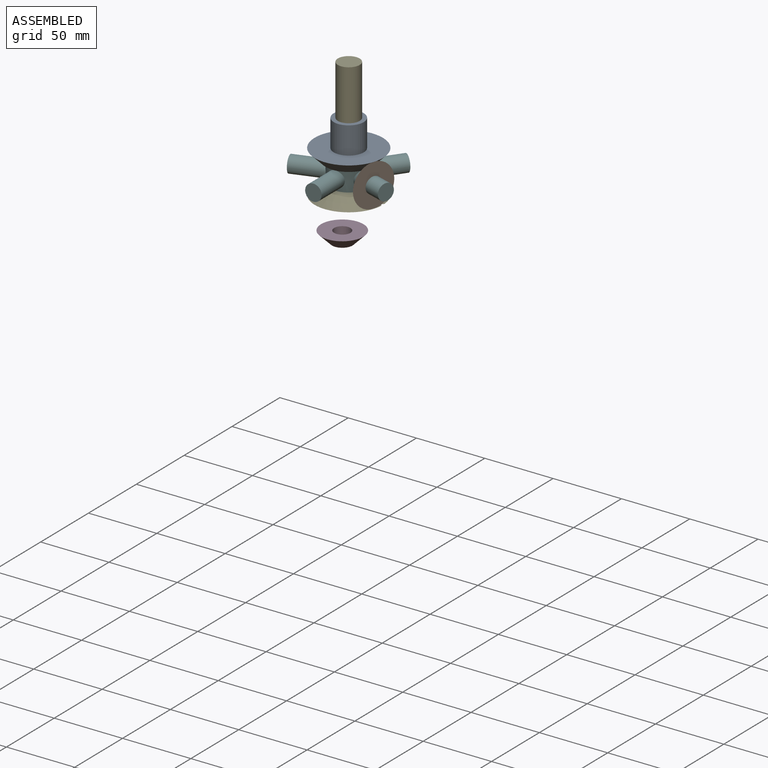
[diagram: assembled view]
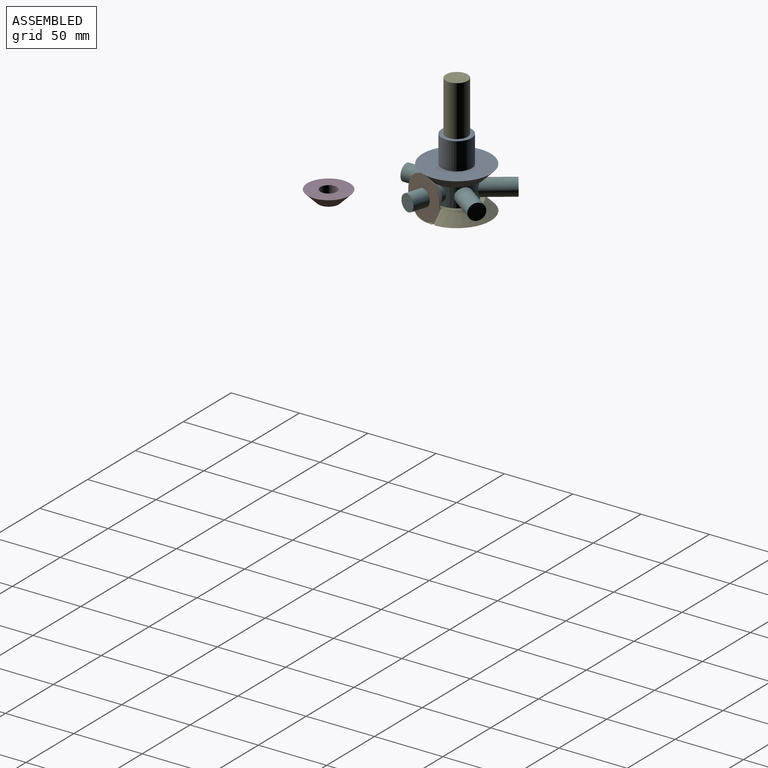
[diagram: assembled view, second angle]
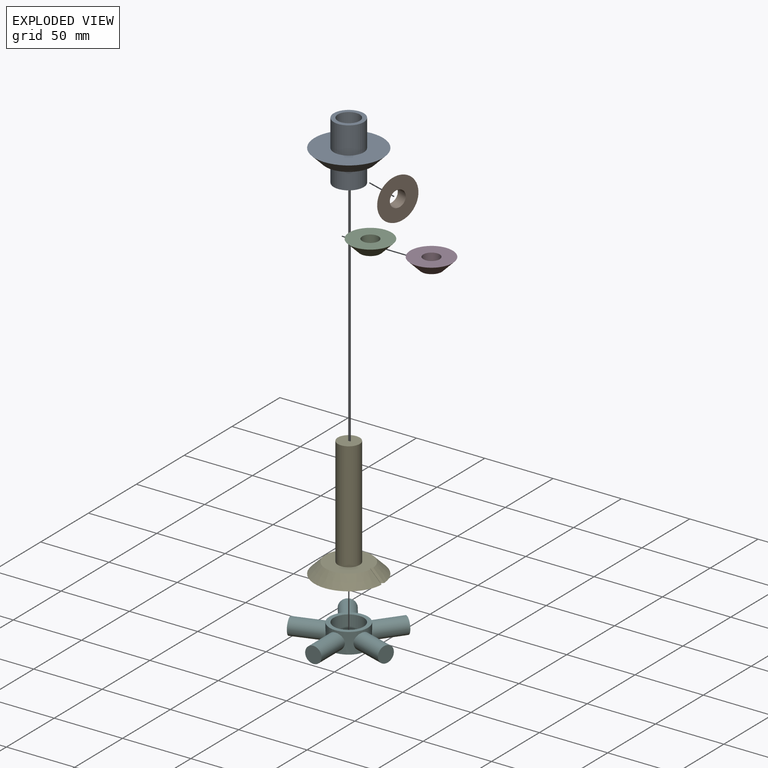
[diagram: exploded view]
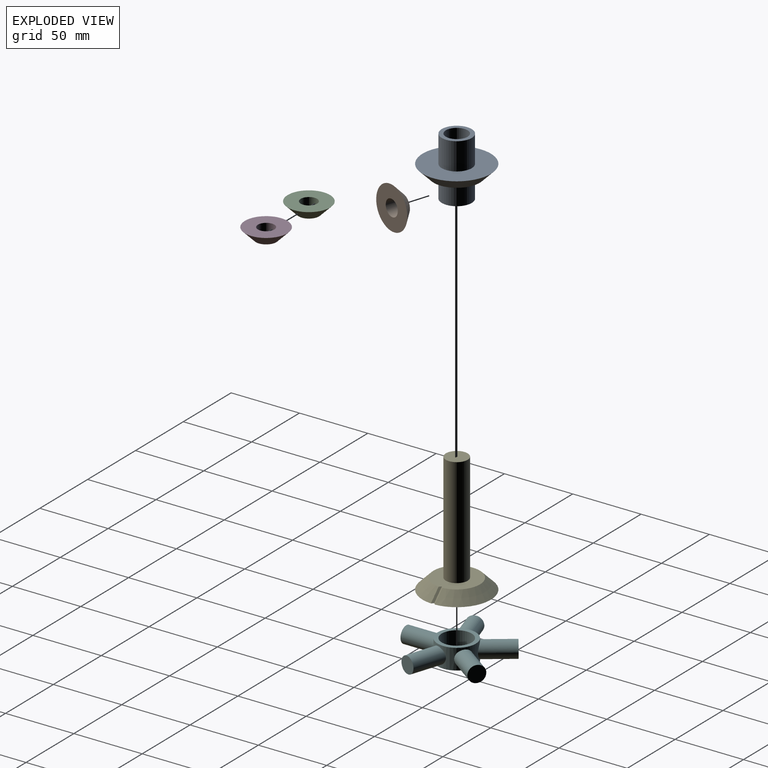
[diagram: exploded view, second angle]
ASSEMBLY  parts=6 mates=5
PART A: 8 faces, bbox 50x50x43 mm
  f0: cylinder r=8mm len=43mm, axis (0,0,-1), area 2161.4mm2, adj f1,f7
  f1: plane 22x22mm, normal (0,0,-1), area 179.1mm2, adj f0,f2
  f2: cylinder r=11mm len=22mm, axis (0,0,-1), area 1036.7mm2, adj f1,f3
  f3: plane 34x34mm, normal (0,0,-1), area 527.8mm2, adj f2,f4
  f4: cone r=25mm half-angle=45deg, axis (0,0,1), area 1492.8mm2, adj f3,f5
  f5: plane 50x50mm, normal (0,0,1), area 1583.4mm2, adj f4,f6
  f6: cylinder r=11mm len=22mm, axis (0,0,-1), area 1382.3mm2, adj f5,f7
  f7: plane 22x22mm, normal (0,0,1), area 179.1mm2, adj f0,f6
PART B: 4 faces, bbox 31x31x8 mm
  f0: cylinder r=6mm len=12mm, axis (0,0,-1), area 301.6mm2, adj f1,f3
  f1: plane 15x15mm, normal (0,0,-1), area 63.6mm2, adj f0,f2
  f2: cone r=15.5mm half-angle=45deg, axis (0,0,1), area 817.5mm2, adj f1,f3
  f3: plane 31x31mm, normal (0,0,1), area 641.7mm2, adj f0,f2
PART C: same geometry as B
PART D: same geometry as B
PART E: 9 faces, bbox 50.1x50.1x88.1 mm
  f0: plane 50x49.96mm, normal (0,0,-1), area 1961.4mm2, adj f1,f5,f6,f7,f8
  f1: cone r=25mm half-angle=45deg, axis (0,0,-1), area 1460mm2, adj f0,f2,f7,f8
  f2: plane 34x33.94mm, normal (0,0,1), area 704.7mm2, adj f1,f3,f5,f6
  f3: cylinder r=8mm len=80mm, axis (0,0,1), area 4021.2mm2, adj f2,f4
  f4: plane 16x16mm, normal (0,0,1), area 201.1mm2, adj f3
  f5: plane 9.41x8mm, normal (0.58,0.58,0.58), area 19.6mm2, adj f0,f2,f6,f7
  f6: plane 9.41x8mm, normal (0.58,-0.58,0.58), area 19.6mm2, adj f0,f2,f5,f8
  f7: plane 8.13x8.11mm, normal (0,1,0), area 0.1mm2, adj f0,f1,f5
  f8: plane 8.13x8.11mm, normal (0,-1,0), area 0.1mm2, adj f0,f1,f6
PART F: 14 faces, bbox 74.1x70.5x15 mm
  f0: cylinder r=6mm len=26.87mm, axis (0.95,0.31,0), area 892.3mm2, adj f1,f8
  f1: plane 12x11.41mm, normal (-0.95,-0.31,0), area 113.1mm2, adj f0
  f2: cylinder r=6mm len=26.75mm, axis (0.59,-0.81,0), area 892.3mm2, adj f3,f8
  f3: plane 12x9.71mm, normal (-0.59,0.81,0), area 113.1mm2, adj f2
  f4: cylinder r=6mm len=26.75mm, axis (-0.59,-0.81,0), area 892.3mm2, adj f5,f8
  f5: plane 12x9.71mm, normal (0.59,0.81,0), area 113.1mm2, adj f4
  f6: cylinder r=6mm len=26.87mm, axis (-0.95,0.31,0), area 892.2mm2, adj f7,f8
  f7: plane 12x11.41mm, normal (0.95,-0.31,0), area 113.1mm2, adj f6
  f8: cylinder r=14mm len=28mm, axis (0,0,-1), area 740.6mm2, adj f0,f2,f4,f6,f10,f11,f12
  f9: cylinder r=11mm len=22mm, axis (0,0,-1), area 1036.7mm2, adj f10,f11
  f10: plane 28x28mm, normal (0,0,1), area 235.6mm2, adj f8,f9
  f11: plane 28x28mm, normal (0,0,-1), area 235.6mm2, adj f8,f9
  f12: cylinder r=6mm len=24.35mm, axis (0,1,0), area 892.3mm2, adj f8,f13
  f13: plane 12x12mm, normal (0,-1,0), area 113.1mm2, adj f12
PLACE A t=(-11.83,81.92,9.17)mm
PLACE B rot(axis=(0.31,0.95,0),90deg) t=(4.1,76.75,1.67)mm
PLACE C t=(29.06,16.76,-9.59)mm
PLACE D t=(29.06,16.76,-9.59)mm
PLACE E t=(-11.83,81.92,-13.83)mm
PLACE F t=(-11.83,81.92,-5.83)mm
MATE slider F.f9 <-> A.f0  axis (0,0,-1) through (-11.83,81.92,9.17)mm
MATE planar E.f2 <-> A.f0  axis (0,0,1) through (-11.87,81.92,-5.83)mm
MATE planar F.f9 <-> A.f0  axis (0,0,-1) through (-11.83,81.92,-5.83)mm
MATE revolute F.f6 <-> B.f0  axis (-0.95,0.31,0) through (11.71,74.28,1.67)mm
MATE slider A.f0 <-> E.f1  axis (0,0,1) through (-11.83,81.92,37.17)mm
